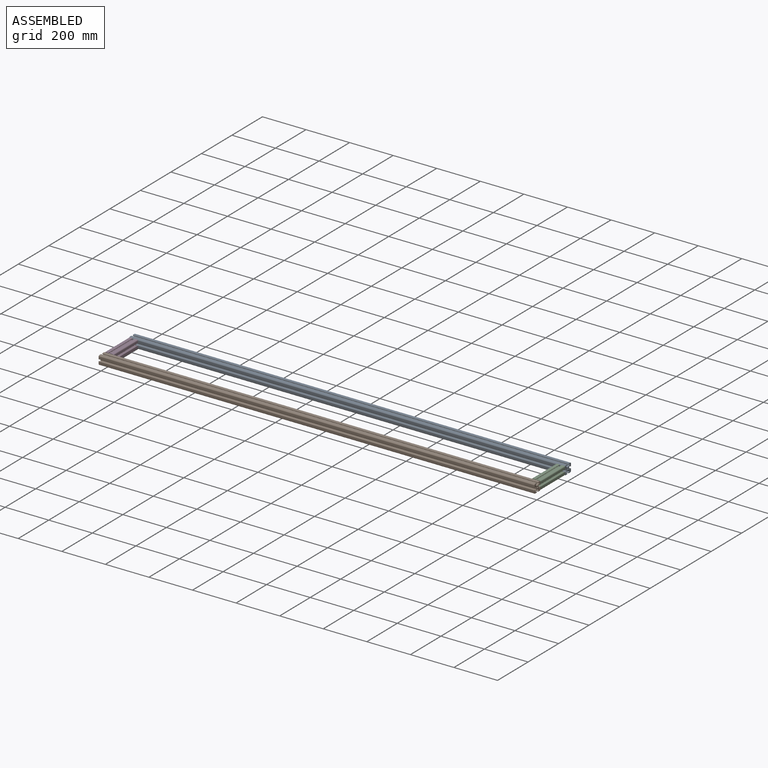
[diagram: assembled view]
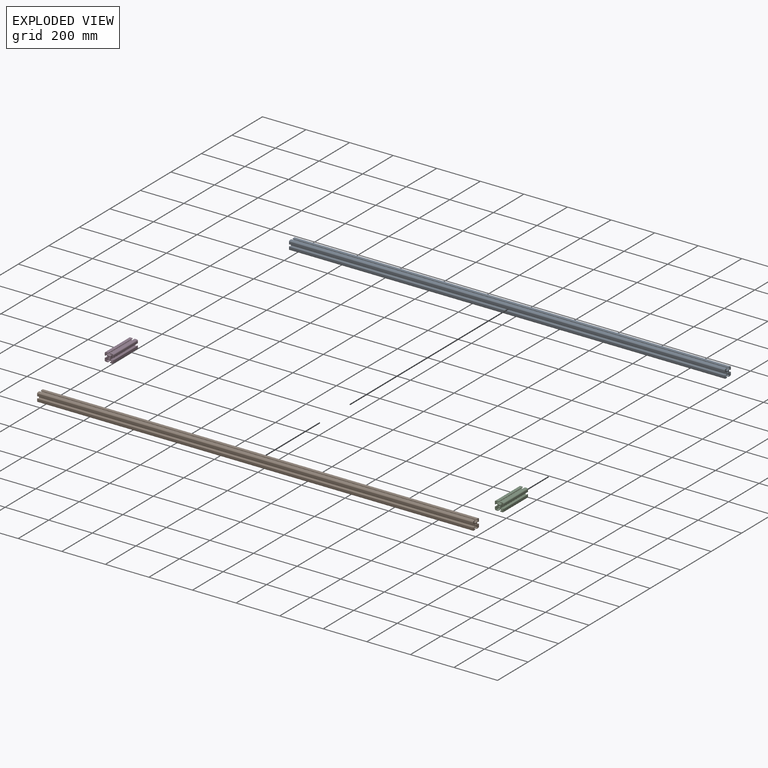
[diagram: exploded view]
GUIDED TOUR — MATED ASSEMBLY (Onshape document a8d9fd13c2979583b08a12fe, AutoMate assembly a8d9fd13c2979583b08a12fe_13805c532ee2814250194489_da5bbe4ac41f4ea30e49d198_default)

This assembly has 4 components, labeled P0..P3 below (a component is one placed occurrence of a part; the same part can appear more than once), held together by 3 mates. A mate is a constraint between two components; its type names the relative motion it leaves free:
  FASTENED — locks the two components together rigidly (no relative motion).
Axis/direction vectors are unit vectors and 'through' points are millimeter coordinates, both in the assembly's world frame.

MATES
  1. FASTENED "Fastened 2": P1 <-> P3, direction (0.000, 1.000, 0.000) through (0.00, -175.94, -15.18) mm
  2. FASTENED "Fastened 3": P2 <-> P0, direction (0.000, 1.000, 0.000) through (2000.00, -15.94, -15.18) mm
  3. FASTENED "Fastened 1": P3 <-> P0, direction (0.000, 1.000, 0.000) through (0.00, -15.94, 5.88) mm

ASSEMBLY ORDER
  1. P3 — the base component [order verified]
  2. P2 [order verified]
  3. P1 [order verified]
  4. P0 [order verified]
Order-tag legend:
  [order verified] — this step's position reverses a verified removal order: the component was checked to insert without passing through the ones already placed.

Of the 4 components, 4 carry the full construction recipe — the FeatureScript program that regenerates the part's solid from scratch; the rest are supplied as boundary geometry only.
Each toured component is shown spotlighted twice — in the assembled view, then in the exploded view, where a leader line traces a displaced component back to its assembled socket (saturated green if recipe-attached, orange if geometry-only; every other component desaturated gray) — followed by its recipe or geometry summary and the mates that hold it.
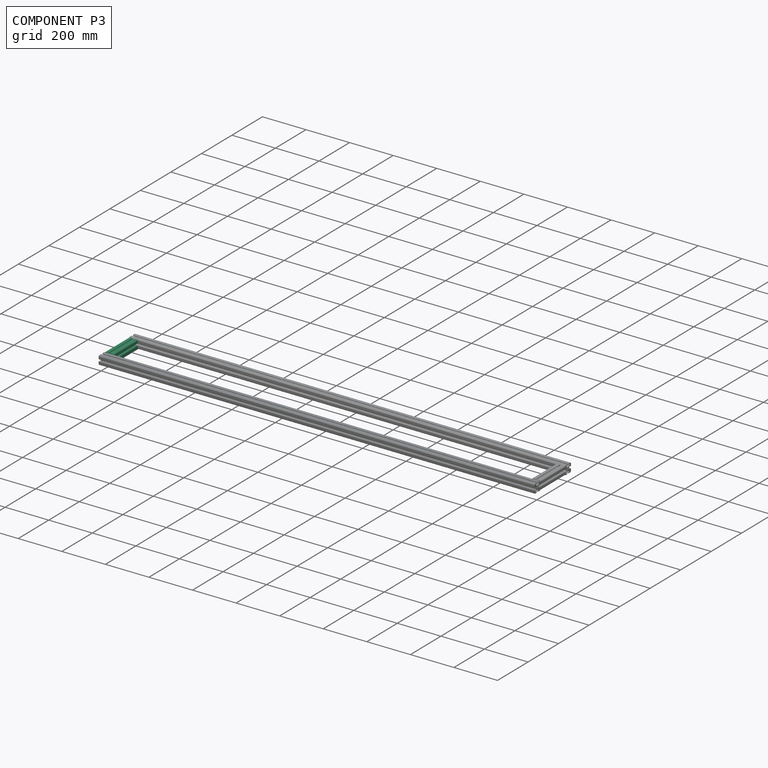
[diagram: component P3 — assembled]
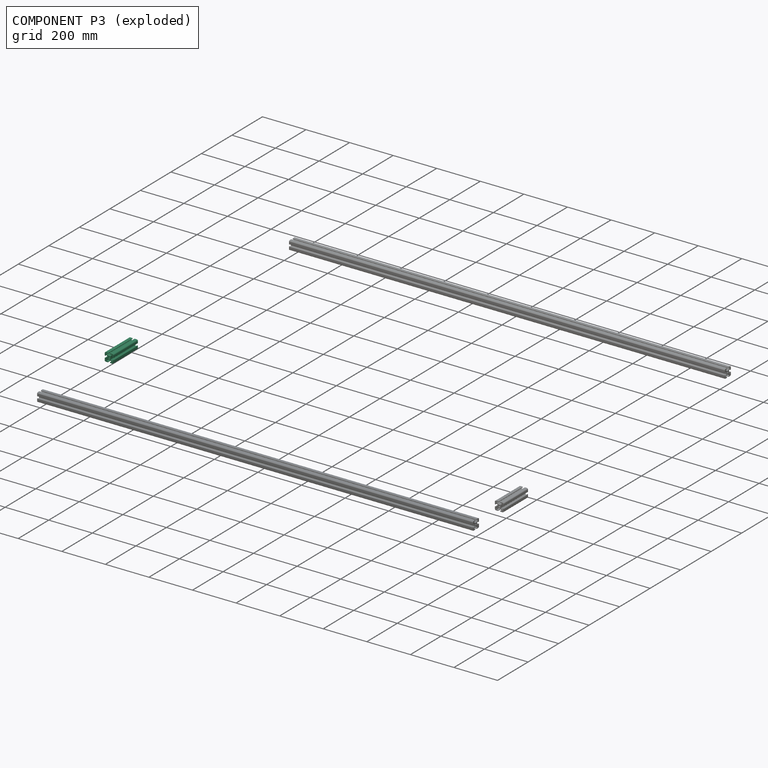
[diagram: component P3 — exploded]
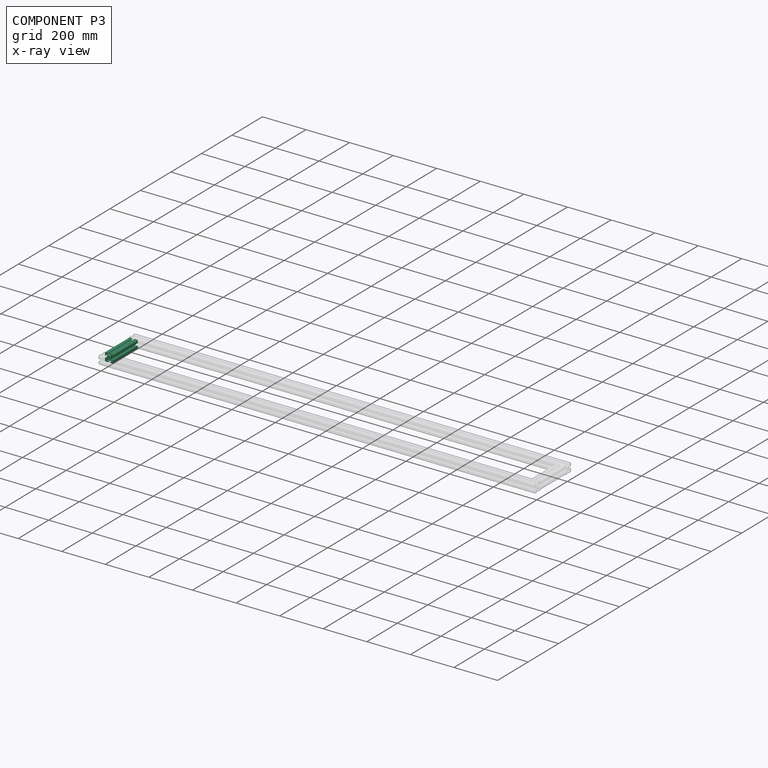
[diagram: component P3 — x-ray view]
COMPONENT P3 — same part as P2 (CADFS 00881979); its construction recipe is shown at P2.
Held by: FASTENED mate "Fastened 2" to P1; FASTENED mate "Fastened 1" to P0.
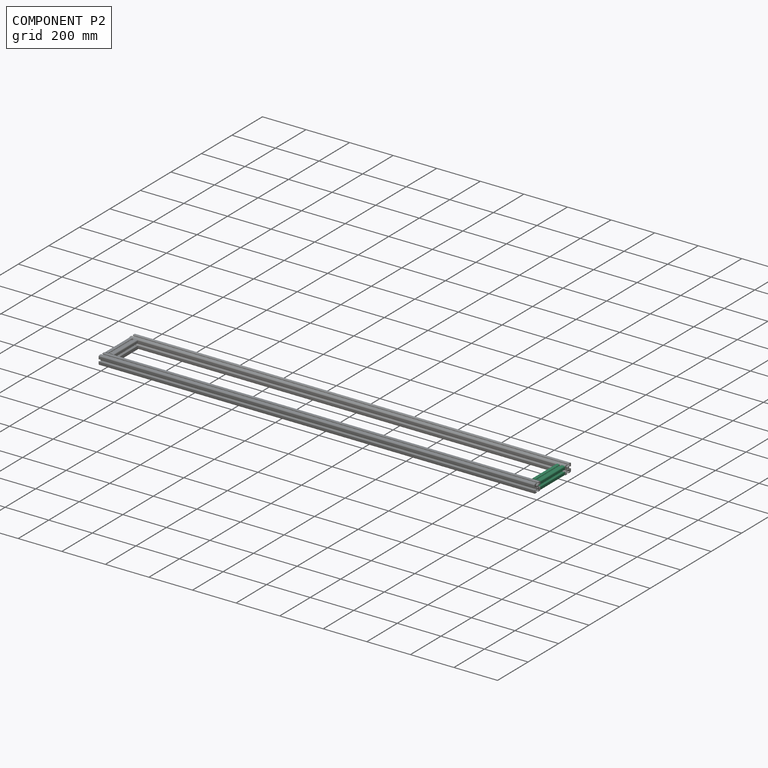
[diagram: component P2 — assembled]
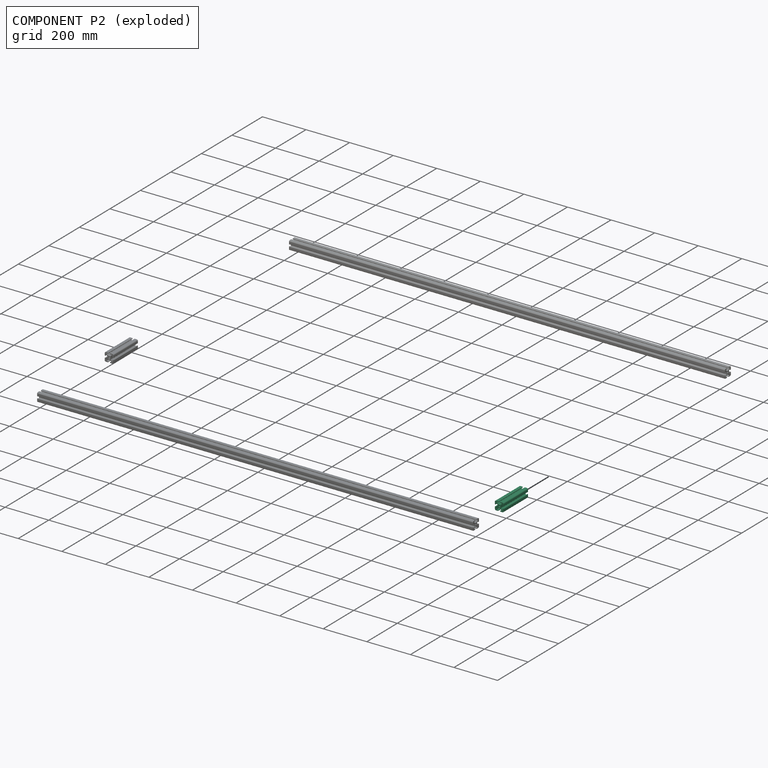
[diagram: component P2 — exploded]
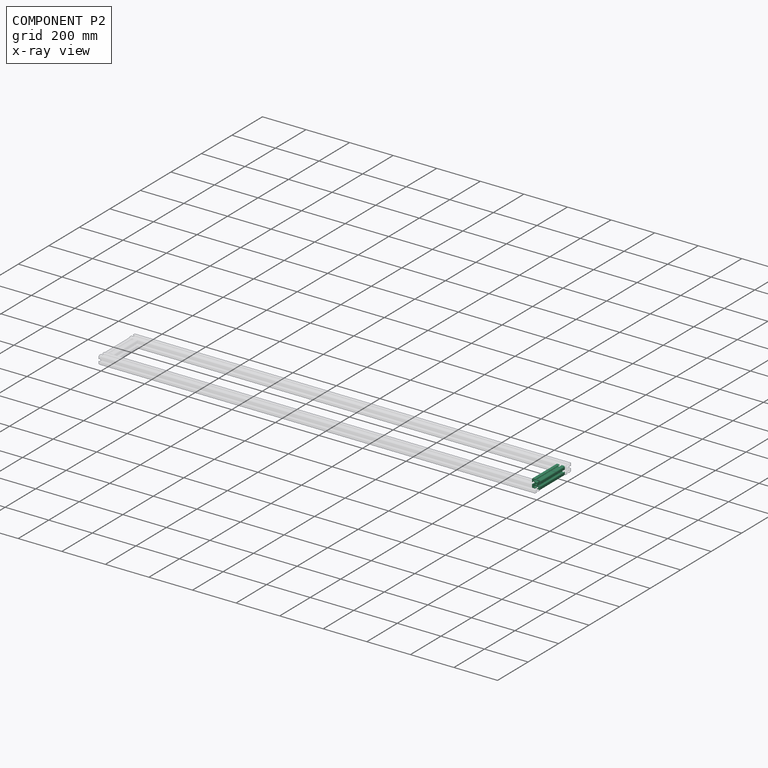
[diagram: component P2 — x-ray view]
COMPONENT P2 — recipe-attached (CADFS 00881979, mesh-verified: the recipe's output STEP matches this component's geometry to below the mesh-comparison resolution (tessellation chordal tolerance ~0.255 mm)).
Held by: FASTENED mate "Fastened 3" to P0.
Construction recipe (FeatureScript — the CAD program that rebuilds this solid; sketch coordinates are in the units given by the * unit suffixes, e.g. mm):

FeatureScript 1511;
import(path : "onshape/std/geometry.fs", version : "1511.0");
import(path : "onshape/std/common.fs", version : "1511.0");
const mm = millimeter;
const VERTEX = EntityType.VERTEX;
const EDGE = EntityType.EDGE;
const FACE = EntityType.FACE;
const BODY = EntityType.BODY;
function v(x, y){return vector(x, y);}
function OD(order){return orderDisambiguation(order);}
function OSD(set){return originalSetDisambiguation(set);}
function TD(topology){return topologyDisambiguation(topology);}
function TDD(query){return trueDependencyDisambiguation(query);}
function sQuery(a, b, c) {return sketchEntityQuery(a, b, c);}

annotation { "Feature Type Name" : "Feature", "Feature Type Description" : "" }
export const myFeature = defineFeature(function(context is Context, id is Id, definition is map)
    precondition{}
    {
        {
            var Q0;
            Q0=qCreatedBy(makeId("Right.planeOp"),FACE);
            var sketch = newSketch(context, id + "F0", { "sketchPlane" : qUnion([Q0])});
            skLineSegment(sketch, "E0", {"start": v(-15.94, 15.35) * mm, "end": v(0, 15.35) * mm});
            skLineSegment(sketch, "E1", {"start": v(0, 15.35) * mm, "end": v(8.12, 15.35) * mm, "construction": true});
            skLineSegment(sketch, "E2", {"start": v(8.12, 15.35) * mm, "end": v(24.06, 15.35) * mm});
            skLineSegment(sketch, "E3.bottom", {"start": v(-3.62, 3.04) * mm, "end": v(11.75, 3.04) * mm});
            skLineSegment(sketch, "E3.top", {"start": v(-3.62, -12.33) * mm, "end": v(11.75, -12.33) * mm});
            skLineSegment(sketch, "E3.left", {"start": v(-3.62, 3.04) * mm, "end": v(-3.62, -12.33) * mm});
            skLineSegment(sketch, "E3.right", {"start": v(11.75, 3.04) * mm, "end": v(11.75, -12.33) * mm});
            skLineSegment(sketch, "E4", {"start": v(11.74, 3.04) * mm, "end": v(24.06, 15.35) * mm, "construction": true});
            skLineSegment(sketch, "E5", {"start": v(-3.62, 3.04) * mm, "end": v(-15.94, 15.35) * mm});
            skLineSegment(sketch, "E6", {"start": v(-3.62, -12.33) * mm, "end": v(-15.94, -24.65) * mm, "construction": true});
            skLineSegment(sketch, "E7", {"start": v(11.74, -12.33) * mm, "end": v(24.06, -24.65) * mm});
            skLineSegment(sketch, "E8", {"start": v(16.5, 7.78) * mm, "end": v(14.97, 9.31) * mm, "construction": true});
            skLineSegment(sketch, "E9", {"start": v(16.5, 7.78) * mm, "end": v(18.02, 6.26) * mm, "construction": true});
            skLineSegment(sketch, "E10", {"start": v(14.97, 9.31) * mm, "end": v(21, 15.35) * mm});
            skLineSegment(sketch, "E11", {"start": v(18.02, 6.26) * mm, "end": v(24.06, 12.3) * mm});
            skLineSegment(sketch, "E12", {"start": v(14.97, 9.31) * mm, "end": v(-15.94, -21.6) * mm});
            skLineSegment(sketch, "E13", {"start": v(18.02, 6.26) * mm, "end": v(-12.89, -24.65) * mm});
            skLineSegment(sketch, "E14", {"start": v(0, 15.35) * mm, "end": v(0, 11.03) * mm});
            skLineSegment(sketch, "E15", {"start": v(8.12, 15.35) * mm, "end": v(8.12, 11.03) * mm});
            skLineSegment(sketch, "E16", {"start": v(8.12, 11.03) * mm, "end": v(16.69, 11.03) * mm});
            skLineSegment(sketch, "E17", {"start": v(0, 11.03) * mm, "end": v(-11.62, 11.03) * mm});
            skLineSegment(sketch, "E18", {"start": v(-3.62, 3.04) * mm, "end": v(11.75, -12.33) * mm});
            skLineSegment(sketch, "E19", {"start": v(11.74, 3.04) * mm, "end": v(-3.62, -12.33) * mm, "construction": true});
            skCircle(sketch, "E20", {"center": v(4.06, -4.65) * mm, "radius": 3.4 * mm});
            skLineSegment(sketch, "E21", {"start": v(24.06, -0.59) * mm, "end": v(24.06, -8.7) * mm, "construction": true});
            skLineSegment(sketch, "E22", {"start": v(24.06, -0.59) * mm, "end": v(24.06, 15.35) * mm});
            skLineSegment(sketch, "E23", {"start": v(24.06, -24.65) * mm, "end": v(24.06, -8.7) * mm});
            skLineSegment(sketch, "E24", {"start": v(24.06, -0.59) * mm, "end": v(19.74, -0.59) * mm});
            skLineSegment(sketch, "E25", {"start": v(24.06, -8.7) * mm, "end": v(19.74, -8.7) * mm});
            skLineSegment(sketch, "E26", {"start": v(19.74, -0.59) * mm, "end": v(19.74, 7.98) * mm});
            skLineSegment(sketch, "E27", {"start": v(19.74, 7.98) * mm, "end": v(16.69, 11.03) * mm});
            skLineSegment(sketch, "E28", {"start": v(-7.27, 6.68) * mm, "end": v(-8.8, 5.15) * mm});
            skLineSegment(sketch, "E29", {"start": v(-7.27, 6.68) * mm, "end": v(-5.74, 8.2) * mm});
            skLineSegment(sketch, "E30", {"start": v(-5.74, 8.2) * mm, "end": v(-12.89, 15.35) * mm});
            skLineSegment(sketch, "E31", {"start": v(-5.74, 8.2) * mm, "end": v(24.06, -21.6) * mm});
            skLineSegment(sketch, "E32", {"start": v(19.74, -8.7) * mm, "end": v(19.74, -17.27) * mm});
            skLineSegment(sketch, "E33", {"start": v(-15.94, 15.35) * mm, "end": v(-15.94, -0.59) * mm});
            skLineSegment(sketch, "E34", {"start": v(-15.94, -0.59) * mm, "end": v(-15.94, -8.7) * mm, "construction": true});
            skLineSegment(sketch, "E35", {"start": v(-15.94, -24.65) * mm, "end": v(0, -24.65) * mm});
            skLineSegment(sketch, "E36", {"start": v(0, -24.65) * mm, "end": v(8.12, -24.65) * mm, "construction": true});
            skLineSegment(sketch, "E37", {"start": v(-15.94, -8.7) * mm, "end": v(-15.94, -24.65) * mm});
            skLineSegment(sketch, "E38", {"start": v(8.12, -24.65) * mm, "end": v(24.06, -24.65) * mm});
            skLineSegment(sketch, "E39", {"start": v(-8.8, 5.15) * mm, "end": v(-15.94, 12.3) * mm});
            skLineSegment(sketch, "E40", {"start": v(-8.8, 5.15) * mm, "end": v(21, -24.65) * mm});
            skLineSegment(sketch, "E41", {"start": v(-15.94, -0.59) * mm, "end": v(-11.62, -0.59) * mm});
            skLineSegment(sketch, "E42", {"start": v(-15.94, -8.7) * mm, "end": v(-11.62, -8.7) * mm});
            skLineSegment(sketch, "E43", {"start": v(0, -24.65) * mm, "end": v(0, -20.33) * mm});
            skLineSegment(sketch, "E44", {"start": v(8.12, -24.65) * mm, "end": v(8.12, -20.33) * mm});
            skLineSegment(sketch, "E45", {"start": v(-11.62, -0.59) * mm, "end": v(-11.62, 7.98) * mm});
            skLineSegment(sketch, "E46", {"start": v(-11.62, -8.7) * mm, "end": v(-11.62, -17.27) * mm});
            skLineSegment(sketch, "E47", {"start": v(0, -20.33) * mm, "end": v(-8.57, -20.33) * mm});
            skLineSegment(sketch, "E48", {"start": v(8.12, -20.33) * mm, "end": v(16.69, -20.33) * mm});
            skSolve(sketch);
        }
        {
            var Q0;
            {var subQ0=sQuery(id+"F0.wireOp",EDGE,"E41");Q0=makeQuery(id+"F0.imprint","IMPRINT",FACE,{"disambiguationData":[TD([[makeQuery(id+"F0.imprint","IMPRINT",EDGE,{"derivedFrom":subQ0}),1.0]])]});}
            var Q1;
            {var subQ0=sQuery(id+"F0.wireOp",EDGE,"E28");Q1=makeQuery(id+"F0.imprint","IMPRINT",FACE,{"disambiguationData":[TD([[makeQuery(id+"F0.imprint","IMPRINT",EDGE,{"derivedFrom":subQ0}),-1.0]])]});}
            var Q2;
            {var subQ3=sQuery(id+"F0.wireOp",EDGE,"E29");Q2=makeQuery(id+"F0.imprint","IMPRINT",FACE,{"disambiguationData":[TD([[makeQuery(id+"F0.imprint","IMPRINT",EDGE,{"derivedFrom":subQ3}),1.0]])]});}
            var Q3;
            {var subQ0=sQuery(id+"F0.wireOp",EDGE,"E14");Q3=makeQuery(id+"F0.imprint","IMPRINT",FACE,{"disambiguationData":[TD([[makeQuery(id+"F0.imprint","IMPRINT",EDGE,{"derivedFrom":subQ0}),-1.0]])]});}
            var Q4;
            {var subQ0=sQuery(id+"F0.wireOp",EDGE,"E5");var subQ5=sQuery(id+"F0.wireOp",EDGE,"E17");var subQ6=makeQuery(id+"F0.imprint","INTERSECT",VERTEX,{"derivedFrom":[subQ0,subQ5]});Q4=makeQuery(id+"F0.imprint","IMPRINT",FACE,{"disambiguationData":[TD([[makeQuery(id+"F0.imprint","IMPRINT",EDGE,{"disambiguationData":[TD([[subQ6,1.0]])],"derivedFrom":subQ5}),-1.0]])]});}
            var Q5;
            {var subQ4=sQuery(id+"F0.wireOp",EDGE,"E42");Q5=makeQuery(id+"F0.imprint","IMPRINT",FACE,{"disambiguationData":[TD([[makeQuery(id+"F0.imprint","IMPRINT",EDGE,{"derivedFrom":subQ4}),-1.0]])]});}
            var Q6;
            {var subQ2=sQuery(id+"F0.wireOp",EDGE,"E3.left");var subQ6=sQuery(id+"F0.wireOp",EDGE,"E3.top");var subQ7=makeQuery(id+"F0.imprint","INTERSECT",VERTEX,{"derivedFrom":[subQ6,subQ2]});Q6=makeQuery(id+"F0.imprint","IMPRINT",FACE,{"disambiguationData":[TD([[makeQuery(id+"F0.imprint","IMPRINT",EDGE,{"disambiguationData":[TD([[subQ7,-1.0]])],"derivedFrom":subQ6}),-1.0]])]});}
            var Q7;
            {var subQ4=sQuery(id+"F0.wireOp",EDGE,"E43");Q7=makeQuery(id+"F0.imprint","IMPRINT",FACE,{"disambiguationData":[TD([[makeQuery(id+"F0.imprint","IMPRINT",EDGE,{"derivedFrom":subQ4}),1.0]])]});}
            var Q8;
            {var subQ3=sQuery(id+"F0.wireOp",EDGE,"E27");Q8=makeQuery(id+"F0.imprint","IMPRINT",FACE,{"disambiguationData":[TD([[makeQuery(id+"F0.imprint","IMPRINT",EDGE,{"derivedFrom":subQ3}),1.0]])]});}
            var Q9;
            {var subQ3=sQuery(id+"F0.wireOp",EDGE,"E27");Q9=makeQuery(id+"F0.imprint","IMPRINT",FACE,{"disambiguationData":[TD([[makeQuery(id+"F0.imprint","IMPRINT",EDGE,{"derivedFrom":subQ3}),-1.0]])]});}
            var Q10;
            {var subQ4=sQuery(id+"F0.wireOp",EDGE,"E24");Q10=makeQuery(id+"F0.imprint","IMPRINT",FACE,{"disambiguationData":[TD([[makeQuery(id+"F0.imprint","IMPRINT",EDGE,{"derivedFrom":subQ4}),-1.0]])]});}
            var Q11;
            {var subQ0=sQuery(id+"F0.wireOp",EDGE,"E15");Q11=makeQuery(id+"F0.imprint","IMPRINT",FACE,{"disambiguationData":[TD([[makeQuery(id+"F0.imprint","IMPRINT",EDGE,{"derivedFrom":subQ0}),1.0]])]});}
            var Q12;
            {var subQ0=sQuery(id+"F0.wireOp",EDGE,"E13");var subQ1=sQuery(id+"F0.wireOp",EDGE,"E3.right");var subQ2=makeQuery(id+"F0.imprint","INTERSECT",VERTEX,{"derivedFrom":[subQ1,subQ0]});Q12=makeQuery(id+"F0.imprint","IMPRINT",FACE,{"disambiguationData":[TD([[makeQuery(id+"F0.imprint","IMPRINT",EDGE,{"disambiguationData":[TD([[subQ2,-1.0]])],"derivedFrom":subQ1}),-1.0]])]});}
            var Q13;
            {var subQ0=sQuery(id+"F0.wireOp",EDGE,"E13");var subQ1=sQuery(id+"F0.wireOp",EDGE,"E3.top");var subQ2=makeQuery(id+"F0.imprint","INTERSECT",VERTEX,{"derivedFrom":[subQ1,subQ0]});Q13=makeQuery(id+"F0.imprint","IMPRINT",FACE,{"disambiguationData":[TD([[makeQuery(id+"F0.imprint","IMPRINT",EDGE,{"disambiguationData":[TD([[subQ2,-1.0]])],"derivedFrom":subQ1}),1.0]])]});}
            var Q14;
            {var subQ0=sQuery(id+"F0.wireOp",EDGE,"E40");var subQ1=sQuery(id+"F0.wireOp",EDGE,"E3.left");var subQ2=makeQuery(id+"F0.imprint","INTERSECT",VERTEX,{"derivedFrom":[subQ1,subQ0]});Q14=makeQuery(id+"F0.imprint","IMPRINT",FACE,{"disambiguationData":[TD([[makeQuery(id+"F0.imprint","IMPRINT",EDGE,{"disambiguationData":[TD([[subQ2,-1.0]])],"derivedFrom":subQ1}),1.0]])]});}
            var Q15;
            {var subQ0=sQuery(id+"F0.wireOp",EDGE,"E31");var subQ1=sQuery(id+"F0.wireOp",EDGE,"E3.bottom");var subQ2=makeQuery(id+"F0.imprint","INTERSECT",VERTEX,{"derivedFrom":[subQ1,subQ0]});Q15=makeQuery(id+"F0.imprint","IMPRINT",FACE,{"disambiguationData":[TD([[makeQuery(id+"F0.imprint","IMPRINT",EDGE,{"disambiguationData":[TD([[subQ2,-1.0]])],"derivedFrom":subQ1}),-1.0]])]});}
            var Q16;
            {var subQ5=sQuery(id+"F0.wireOp",EDGE,"E29");Q16=makeQuery(id+"F0.imprint","IMPRINT",FACE,{"disambiguationData":[TD([[makeQuery(id+"F0.imprint","IMPRINT",EDGE,{"derivedFrom":subQ5}),-1.0]])]});}
            var Q17;
            {var subQ5=sQuery(id+"F0.wireOp",EDGE,"E28");Q17=makeQuery(id+"F0.imprint","IMPRINT",FACE,{"disambiguationData":[TD([[makeQuery(id+"F0.imprint","IMPRINT",EDGE,{"derivedFrom":subQ5}),1.0]])]});}
            var Q18;
            {var subQ1=sQuery(id+"F0.wireOp",EDGE,"E7");Q18=makeQuery(id+"F0.imprint","IMPRINT",FACE,{"disambiguationData":[TD([[makeQuery(id+"F0.imprint","IMPRINT",EDGE,{"derivedFrom":subQ1}),-1.0]])]});}
            var Q19;
            {var subQ1=sQuery(id+"F0.wireOp",EDGE,"E7");Q19=makeQuery(id+"F0.imprint","IMPRINT",FACE,{"disambiguationData":[TD([[makeQuery(id+"F0.imprint","IMPRINT",EDGE,{"derivedFrom":subQ1}),1.0]])]});}
            var Q20;
            {var subQ0=sQuery(id+"F0.wireOp",EDGE,"E25");Q20=makeQuery(id+"F0.imprint","IMPRINT",FACE,{"disambiguationData":[TD([[makeQuery(id+"F0.imprint","IMPRINT",EDGE,{"derivedFrom":subQ0}),1.0]])]});}
            var Q21;
            {var subQ0=sQuery(id+"F0.wireOp",EDGE,"E44");Q21=makeQuery(id+"F0.imprint","IMPRINT",FACE,{"disambiguationData":[TD([[makeQuery(id+"F0.imprint","IMPRINT",EDGE,{"derivedFrom":subQ0}),-1.0]])]});}
            var Q22;
            {var subQ1=sQuery(id+"F0.wireOp",EDGE,"E3.right");var subQ6=sQuery(id+"F0.wireOp",EDGE,"E3.bottom");var subQ9=makeQuery(id+"F0.imprint","INTERSECT",VERTEX,{"derivedFrom":[subQ6,subQ1]});Q22=makeQuery(id+"F0.imprint","IMPRINT",FACE,{"disambiguationData":[TD([[makeQuery(id+"F0.imprint","IMPRINT",EDGE,{"disambiguationData":[TD([[subQ9,1.0]])],"derivedFrom":subQ6}),-1.0]])]});}
            var Q23;
            {var subQ0=sQuery(id+"F0.wireOp",EDGE,"E18");var subQ5=sQuery(id+"F0.wireOp",EDGE,"E20");var subQ6=makeQuery(id+"F0.imprint","INTERSECT",VERTEX,{"disambiguationData":[OD(0.0)],"derivedFrom":[subQ0,subQ5]});Q23=makeQuery(id+"F0.imprint","IMPRINT",FACE,{"disambiguationData":[TD([[makeQuery(id+"F0.imprint","IMPRINT",EDGE,{"disambiguationData":[TD([[subQ6,-1.0]])],"derivedFrom":subQ5}),-1.0]])]});}
            var Q24;
            {var subQ1=sQuery(id+"F0.wireOp",EDGE,"E3.top");var subQ6=sQuery(id+"F0.wireOp",EDGE,"E3.left");var subQ9=makeQuery(id+"F0.imprint","INTERSECT",VERTEX,{"derivedFrom":[subQ1,subQ6]});Q24=makeQuery(id+"F0.imprint","IMPRINT",FACE,{"disambiguationData":[TD([[makeQuery(id+"F0.imprint","IMPRINT",EDGE,{"disambiguationData":[TD([[subQ9,-1.0]])],"derivedFrom":subQ1}),1.0]])]});}
            var Q25;
            {var subQ0=sQuery(id+"F0.wireOp",EDGE,"E18");var subQ5=sQuery(id+"F0.wireOp",EDGE,"E20");var subQ6=makeQuery(id+"F0.imprint","INTERSECT",VERTEX,{"disambiguationData":[OD(1.0)],"derivedFrom":[subQ0,subQ5]});Q25=makeQuery(id+"F0.imprint","IMPRINT",FACE,{"disambiguationData":[TD([[makeQuery(id+"F0.imprint","IMPRINT",EDGE,{"disambiguationData":[TD([[subQ6,1.0]])],"derivedFrom":subQ5}),-1.0]])]});}
            var Q26;
            {var subQ0=sQuery(id+"F0.wireOp",EDGE,"E18");var subQ5=sQuery(id+"F0.wireOp",EDGE,"E20");var subQ6=makeQuery(id+"F0.imprint","INTERSECT",VERTEX,{"disambiguationData":[OD(1.0)],"derivedFrom":[subQ0,subQ5]});Q26=makeQuery(id+"F0.imprint","IMPRINT",FACE,{"disambiguationData":[TD([[makeQuery(id+"F0.imprint","IMPRINT",EDGE,{"disambiguationData":[TD([[subQ6,-1.0]])],"derivedFrom":subQ5}),-1.0]])]});}
            var Q27;
            {var subQ0=sQuery(id+"F0.wireOp",EDGE,"E18");var subQ5=sQuery(id+"F0.wireOp",EDGE,"E20");var subQ6=makeQuery(id+"F0.imprint","INTERSECT",VERTEX,{"disambiguationData":[OD(0.0)],"derivedFrom":[subQ0,subQ5]});Q27=makeQuery(id+"F0.imprint","IMPRINT",FACE,{"disambiguationData":[TD([[makeQuery(id+"F0.imprint","IMPRINT",EDGE,{"disambiguationData":[TD([[subQ6,1.0]])],"derivedFrom":subQ5}),-1.0]])]});}
            extrude(context, id + "F1", {"entities" : qUnion([Q0, Q1, Q2, Q3, Q4, Q5, Q6, Q7, Q8, Q9, Q10, Q11, Q12, Q13, Q14, Q15, Q16, Q17, Q18, Q19, Q20, Q21, Q22, Q23, Q24, Q25, Q26, Q27]), "depth" : 160 * mm});
        }
        {
            var Q0;
            Q0=makeQuery(id+"F1.opExtrude","SWEPT_EDGE",EDGE,{"disambiguationData":[OSD([sQuery(id+"F0.wireOp",EDGE,"E14"),sQuery(id+"F0.wireOp",EDGE,"E17")])]});
            var Q1;
            Q1=makeQuery(id+"F1.opExtrude","SWEPT_EDGE",EDGE,{"disambiguationData":[OSD([sQuery(id+"F0.wireOp",EDGE,"E41"),sQuery(id+"F0.wireOp",EDGE,"E45")])]});
            var Q2;
            Q2=makeQuery(id+"F1.opExtrude","SWEPT_EDGE",EDGE,{"disambiguationData":[OSD([sQuery(id+"F0.wireOp",EDGE,"E33"),sQuery(id+"F0.wireOp",EDGE,"E41")])]});
            var Q3;
            Q3=makeQuery(id+"F1.opExtrude","SWEPT_EDGE",EDGE,{"disambiguationData":[OSD([sQuery(id+"F0.wireOp",EDGE,"E0"),sQuery(id+"F0.wireOp",EDGE,"E14")])]});
            var Q4;
            Q4=makeQuery(id+"F1.opExtrude","SWEPT_EDGE",EDGE,{"disambiguationData":[OSD([sQuery(id+"F0.wireOp",EDGE,"E15"),sQuery(id+"F0.wireOp",EDGE,"E16")])]});
            var Q5;
            Q5=makeQuery(id+"F1.opExtrude","SWEPT_EDGE",EDGE,{"disambiguationData":[OSD([sQuery(id+"F0.wireOp",EDGE,"E24"),sQuery(id+"F0.wireOp",EDGE,"E26")])]});
            var Q6;
            Q6=makeQuery(id+"F1.opExtrude","SWEPT_EDGE",EDGE,{"disambiguationData":[OSD([sQuery(id+"F0.wireOp",EDGE,"E22"),sQuery(id+"F0.wireOp",EDGE,"E24")])]});
            var Q7;
            Q7=makeQuery(id+"F1.opExtrude","SWEPT_EDGE",EDGE,{"disambiguationData":[OSD([sQuery(id+"F0.wireOp",EDGE,"E38"),sQuery(id+"F0.wireOp",EDGE,"E44")])]});
            var Q8;
            Q8=makeQuery(id+"F1.opExtrude","SWEPT_EDGE",EDGE,{"disambiguationData":[OSD([sQuery(id+"F0.wireOp",EDGE,"E2"),sQuery(id+"F0.wireOp",EDGE,"E15")])]});
            var Q9;
            Q9=makeQuery(id+"F1.opExtrude","SWEPT_EDGE",EDGE,{"disambiguationData":[OSD([sQuery(id+"F0.wireOp",EDGE,"E37"),sQuery(id+"F0.wireOp",EDGE,"E42")])]});
            var Q10;
            Q10=makeQuery(id+"F1.opExtrude","SWEPT_EDGE",EDGE,{"disambiguationData":[OSD([sQuery(id+"F0.wireOp",EDGE,"E42"),sQuery(id+"F0.wireOp",EDGE,"E46")])]});
            var Q11;
            Q11=makeQuery(id+"F1.opExtrude","SWEPT_EDGE",EDGE,{"disambiguationData":[OSD([sQuery(id+"F0.wireOp",EDGE,"E35"),sQuery(id+"F0.wireOp",EDGE,"E43")])]});
            var Q12;
            Q12=makeQuery(id+"F1.opExtrude","SWEPT_EDGE",EDGE,{"disambiguationData":[OSD([sQuery(id+"F0.wireOp",EDGE,"E43"),sQuery(id+"F0.wireOp",EDGE,"E47")])]});
            var Q13;
            Q13=makeQuery(id+"F1.opExtrude","SWEPT_EDGE",EDGE,{"disambiguationData":[OSD([sQuery(id+"F0.wireOp",EDGE,"E44"),sQuery(id+"F0.wireOp",EDGE,"E48")])]});
            var Q14;
            Q14=makeQuery(id+"F1.opExtrude","SWEPT_EDGE",EDGE,{"disambiguationData":[OSD([sQuery(id+"F0.wireOp",EDGE,"E25"),sQuery(id+"F0.wireOp",EDGE,"E32")])]});
            var Q15;
            Q15=makeQuery(id+"F1.opExtrude","SWEPT_EDGE",EDGE,{"disambiguationData":[OSD([sQuery(id+"F0.wireOp",EDGE,"E23"),sQuery(id+"F0.wireOp",EDGE,"E25")])]});
            fillet(context, id + "F2", {"entities" : qUnion([Q0, Q1, Q2, Q3, Q4, Q5, Q6, Q7, Q8, Q9, Q10, Q11, Q12, Q13, Q14, Q15]), "radius" : 2 * mm, "tangentPropagation" : true, "allowEdgeOverflow" : false});
        }
        {
            var Q0;
            Q0=makeQuery(id+"F1.opExtrude","SWEPT_EDGE",EDGE,{"disambiguationData":[OSD([sQuery(id+"F0.wireOp",EDGE,"E0"),sQuery(id+"F0.wireOp",EDGE,"E5"),sQuery(id+"F0.wireOp",EDGE,"E33")])]});
            var Q1;
            Q1=makeQuery(id+"F1.opExtrude","SWEPT_EDGE",EDGE,{"disambiguationData":[OSD([sQuery(id+"F0.wireOp",EDGE,"E2"),sQuery(id+"F0.wireOp",EDGE,"E22")])]});
            var Q2;
            Q2=makeQuery(id+"F1.opExtrude","SWEPT_EDGE",EDGE,{"disambiguationData":[OSD([sQuery(id+"F0.wireOp",EDGE,"E7"),sQuery(id+"F0.wireOp",EDGE,"E23"),sQuery(id+"F0.wireOp",EDGE,"E38")])]});
            var Q3;
            Q3=makeQuery(id+"F1.opExtrude","SWEPT_EDGE",EDGE,{"disambiguationData":[OSD([sQuery(id+"F0.wireOp",EDGE,"E35"),sQuery(id+"F0.wireOp",EDGE,"E37")])]});
            fillet(context, id + "F3", {"entities" : qUnion([Q0, Q1, Q2, Q3]), "radius" : 5 * mm, "tangentPropagation" : true, "allowEdgeOverflow" : false});
        }
    });
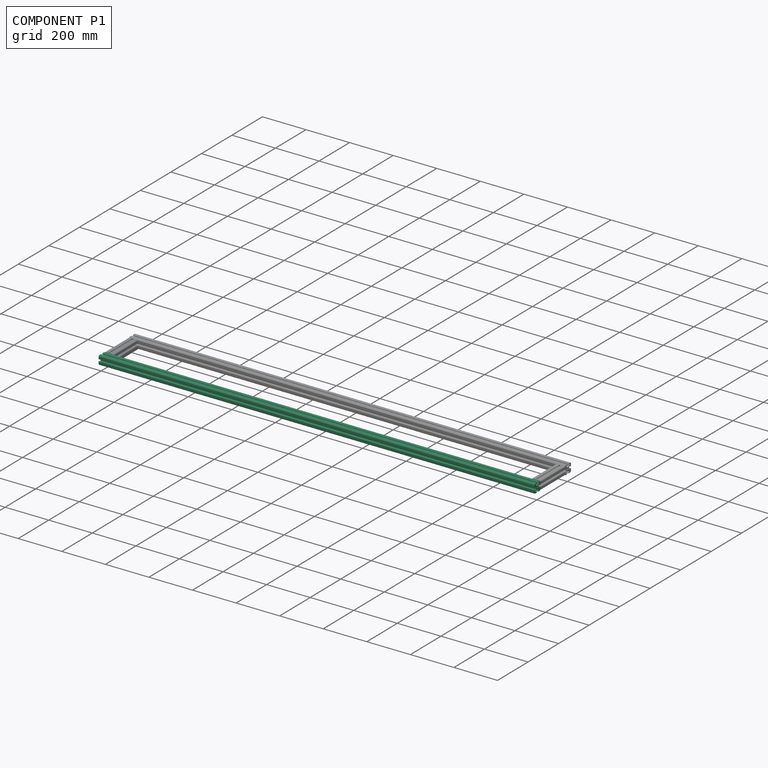
[diagram: component P1 — assembled]
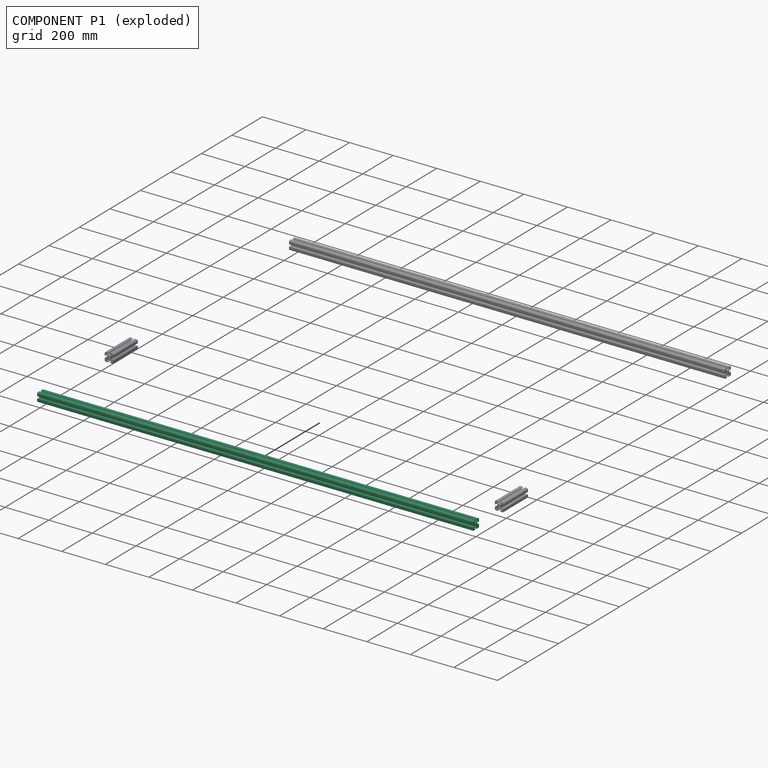
[diagram: component P1 — exploded]
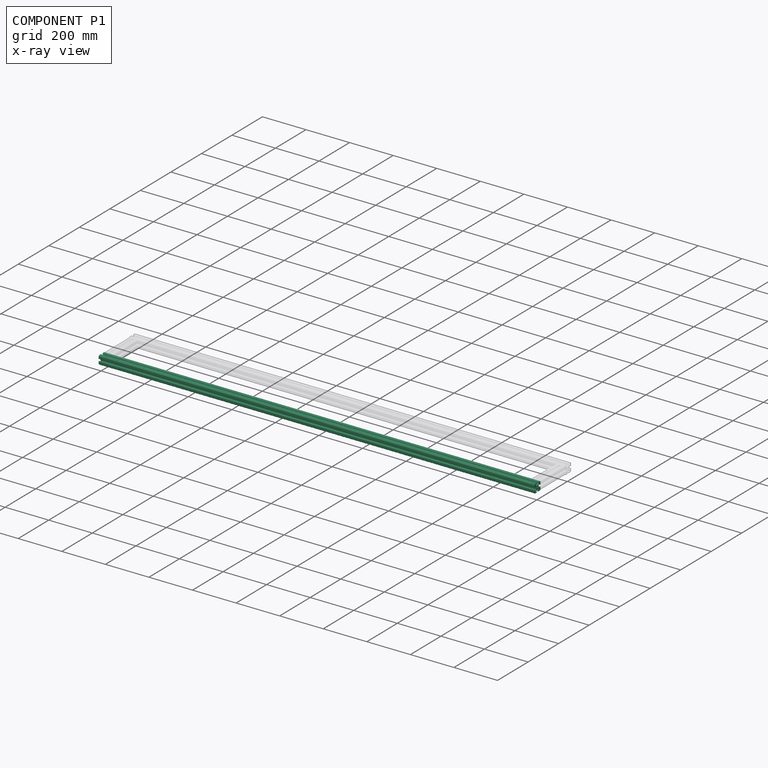
[diagram: component P1 — x-ray view]
COMPONENT P1 — same part as P0 (CADFS 00881980); its construction recipe is shown at P0.
Held by: FASTENED mate "Fastened 2" to P3.
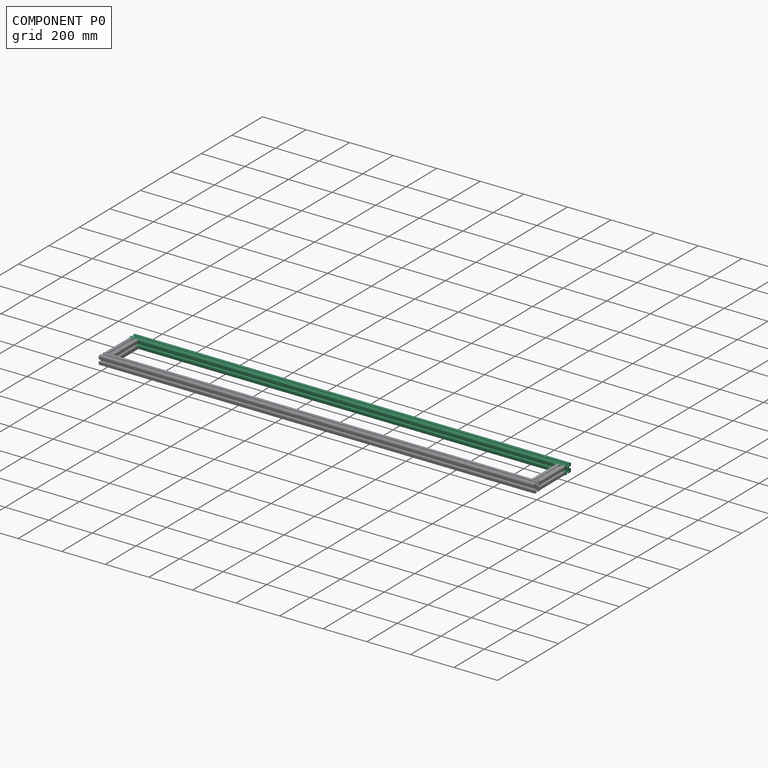
[diagram: component P0 — assembled]
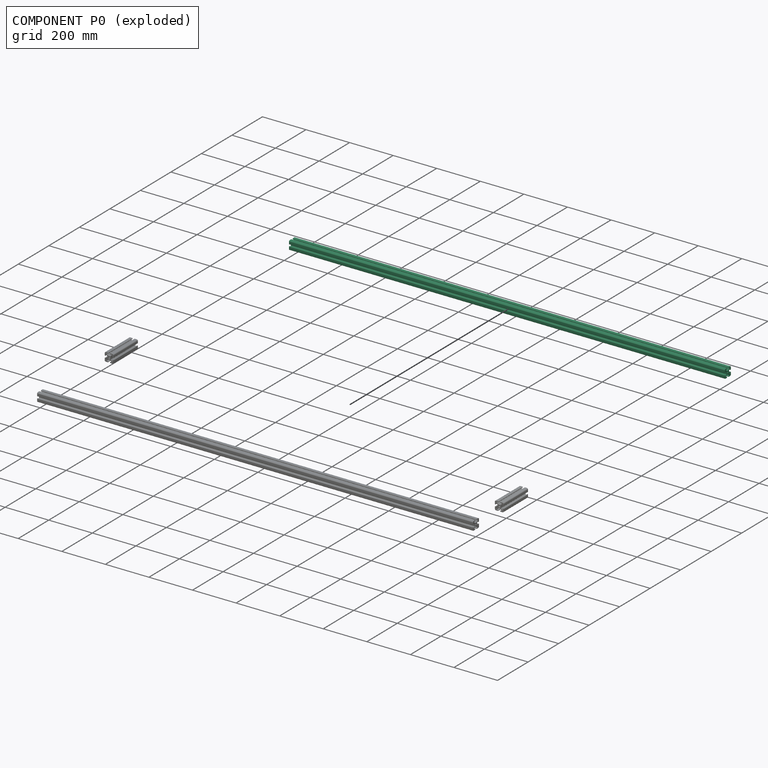
[diagram: component P0 — exploded]
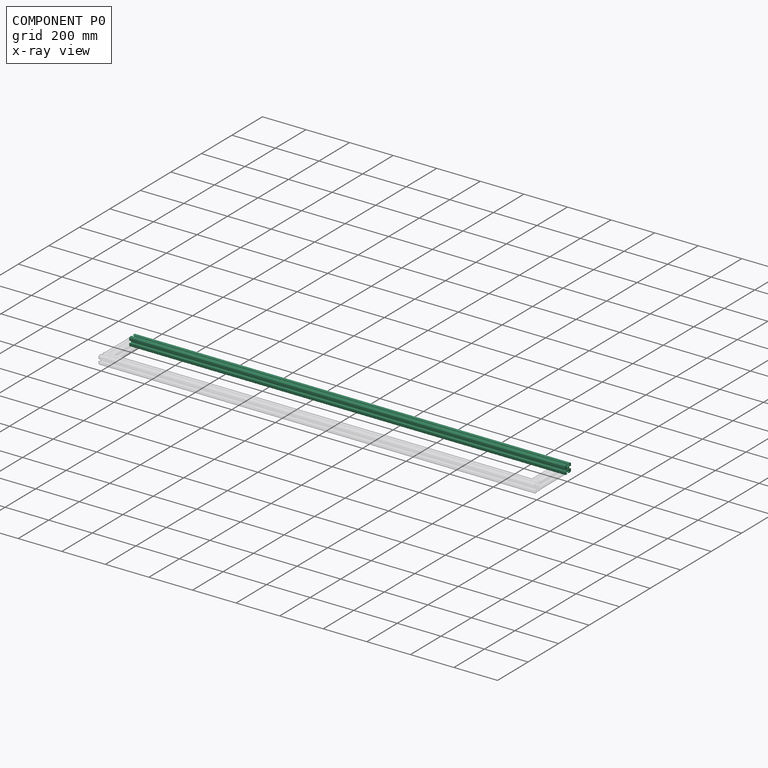
[diagram: component P0 — x-ray view]
COMPONENT P0 — recipe-attached (CADFS 00881980, mesh-verified: the recipe's output STEP matches this component's geometry to below the mesh-comparison resolution (tessellation chordal tolerance ~3 mm)).
Held by: FASTENED mate "Fastened 3" to P2; FASTENED mate "Fastened 1" to P3.
Construction recipe (FeatureScript — the CAD program that rebuilds this solid; sketch coordinates are in the units given by the * unit suffixes, e.g. mm):

FeatureScript 1511;
import(path : "onshape/std/geometry.fs", version : "1511.0");
import(path : "onshape/std/common.fs", version : "1511.0");
const mm = millimeter;
const VERTEX = EntityType.VERTEX;
const EDGE = EntityType.EDGE;
const FACE = EntityType.FACE;
const BODY = EntityType.BODY;
function v(x, y){return vector(x, y);}
function OD(order){return orderDisambiguation(order);}
function OSD(set){return originalSetDisambiguation(set);}
function TD(topology){return topologyDisambiguation(topology);}
function TDD(query){return trueDependencyDisambiguation(query);}
function sQuery(a, b, c) {return sketchEntityQuery(a, b, c);}

annotation { "Feature Type Name" : "Feature", "Feature Type Description" : "" }
export const myFeature = defineFeature(function(context is Context, id is Id, definition is map)
    precondition{}
    {
        {
            var Q0;
            Q0=qCreatedBy(makeId("Right.planeOp"),FACE);
            var sketch = newSketch(context, id + "F0", { "sketchPlane" : qUnion([Q0])});
            skLineSegment(sketch, "E0", {"start": v(-15.94, 15.35) * mm, "end": v(0, 15.35) * mm});
            skLineSegment(sketch, "E1", {"start": v(0, 15.35) * mm, "end": v(8.12, 15.35) * mm, "construction": true});
            skLineSegment(sketch, "E2", {"start": v(8.12, 15.35) * mm, "end": v(24.06, 15.35) * mm});
            skLineSegment(sketch, "E3.bottom", {"start": v(-3.62, 3.04) * mm, "end": v(11.75, 3.04) * mm});
            skLineSegment(sketch, "E3.top", {"start": v(-3.62, -12.33) * mm, "end": v(11.75, -12.33) * mm});
            skLineSegment(sketch, "E3.left", {"start": v(-3.62, 3.04) * mm, "end": v(-3.62, -12.33) * mm});
            skLineSegment(sketch, "E3.right", {"start": v(11.75, 3.04) * mm, "end": v(11.75, -12.33) * mm});
            skLineSegment(sketch, "E4", {"start": v(11.74, 3.04) * mm, "end": v(24.06, 15.35) * mm, "construction": true});
            skLineSegment(sketch, "E5", {"start": v(-3.62, 3.04) * mm, "end": v(-15.94, 15.35) * mm});
            skLineSegment(sketch, "E6", {"start": v(-3.62, -12.33) * mm, "end": v(-15.94, -24.65) * mm, "construction": true});
            skLineSegment(sketch, "E7", {"start": v(11.74, -12.33) * mm, "end": v(24.06, -24.65) * mm});
            skLineSegment(sketch, "E8", {"start": v(16.5, 7.78) * mm, "end": v(14.97, 9.31) * mm, "construction": true});
            skLineSegment(sketch, "E9", {"start": v(16.5, 7.78) * mm, "end": v(18.02, 6.26) * mm, "construction": true});
            skLineSegment(sketch, "E10", {"start": v(14.97, 9.31) * mm, "end": v(21, 15.35) * mm});
            skLineSegment(sketch, "E11", {"start": v(18.02, 6.26) * mm, "end": v(24.06, 12.3) * mm});
            skLineSegment(sketch, "E12", {"start": v(14.97, 9.31) * mm, "end": v(-15.94, -21.6) * mm});
            skLineSegment(sketch, "E13", {"start": v(18.02, 6.26) * mm, "end": v(-12.89, -24.65) * mm});
            skLineSegment(sketch, "E14", {"start": v(0, 15.35) * mm, "end": v(0, 11.03) * mm});
            skLineSegment(sketch, "E15", {"start": v(8.12, 15.35) * mm, "end": v(8.12, 11.03) * mm});
            skLineSegment(sketch, "E16", {"start": v(8.12, 11.03) * mm, "end": v(16.69, 11.03) * mm});
            skLineSegment(sketch, "E17", {"start": v(0, 11.03) * mm, "end": v(-11.62, 11.03) * mm});
            skLineSegment(sketch, "E18", {"start": v(-3.62, 3.04) * mm, "end": v(11.75, -12.33) * mm});
            skLineSegment(sketch, "E19", {"start": v(11.74, 3.04) * mm, "end": v(-3.62, -12.33) * mm, "construction": true});
            skCircle(sketch, "E20", {"center": v(4.06, -4.65) * mm, "radius": 3.4 * mm});
            skLineSegment(sketch, "E21", {"start": v(24.06, -0.59) * mm, "end": v(24.06, -8.7) * mm, "construction": true});
            skLineSegment(sketch, "E22", {"start": v(24.06, -0.59) * mm, "end": v(24.06, 15.35) * mm});
            skLineSegment(sketch, "E23", {"start": v(24.06, -24.65) * mm, "end": v(24.06, -8.7) * mm});
            skLineSegment(sketch, "E24", {"start": v(24.06, -0.59) * mm, "end": v(19.74, -0.59) * mm});
            skLineSegment(sketch, "E25", {"start": v(24.06, -8.7) * mm, "end": v(19.74, -8.7) * mm});
            skLineSegment(sketch, "E26", {"start": v(19.74, -0.59) * mm, "end": v(19.74, 7.98) * mm});
            skLineSegment(sketch, "E27", {"start": v(19.74, 7.98) * mm, "end": v(16.69, 11.03) * mm});
            skLineSegment(sketch, "E28", {"start": v(-7.27, 6.68) * mm, "end": v(-8.8, 5.15) * mm});
            skLineSegment(sketch, "E29", {"start": v(-7.27, 6.68) * mm, "end": v(-5.74, 8.2) * mm});
            skLineSegment(sketch, "E30", {"start": v(-5.74, 8.2) * mm, "end": v(-12.89, 15.35) * mm});
            skLineSegment(sketch, "E31", {"start": v(-5.74, 8.2) * mm, "end": v(24.06, -21.6) * mm});
            skLineSegment(sketch, "E32", {"start": v(19.74, -8.7) * mm, "end": v(19.74, -17.27) * mm});
            skLineSegment(sketch, "E33", {"start": v(-15.94, 15.35) * mm, "end": v(-15.94, -0.59) * mm});
            skLineSegment(sketch, "E34", {"start": v(-15.94, -0.59) * mm, "end": v(-15.94, -8.7) * mm, "construction": true});
            skLineSegment(sketch, "E35", {"start": v(-15.94, -24.65) * mm, "end": v(0, -24.65) * mm});
            skLineSegment(sketch, "E36", {"start": v(0, -24.65) * mm, "end": v(8.12, -24.65) * mm, "construction": true});
            skLineSegment(sketch, "E37", {"start": v(-15.94, -8.7) * mm, "end": v(-15.94, -24.65) * mm});
            skLineSegment(sketch, "E38", {"start": v(8.12, -24.65) * mm, "end": v(24.06, -24.65) * mm});
            skLineSegment(sketch, "E39", {"start": v(-8.8, 5.15) * mm, "end": v(-15.94, 12.3) * mm});
            skLineSegment(sketch, "E40", {"start": v(-8.8, 5.15) * mm, "end": v(21, -24.65) * mm});
            skLineSegment(sketch, "E41", {"start": v(-15.94, -0.59) * mm, "end": v(-11.62, -0.59) * mm});
            skLineSegment(sketch, "E42", {"start": v(-15.94, -8.7) * mm, "end": v(-11.62, -8.7) * mm});
            skLineSegment(sketch, "E43", {"start": v(0, -24.65) * mm, "end": v(0, -20.33) * mm});
            skLineSegment(sketch, "E44", {"start": v(8.12, -24.65) * mm, "end": v(8.12, -20.33) * mm});
            skLineSegment(sketch, "E45", {"start": v(-11.62, -0.59) * mm, "end": v(-11.62, 7.98) * mm});
            skLineSegment(sketch, "E46", {"start": v(-11.62, -8.7) * mm, "end": v(-11.62, -17.27) * mm});
            skLineSegment(sketch, "E47", {"start": v(0, -20.33) * mm, "end": v(-8.57, -20.33) * mm});
            skLineSegment(sketch, "E48", {"start": v(8.12, -20.33) * mm, "end": v(16.69, -20.33) * mm});
            skSolve(sketch);
        }
        {
            var Q0;
            {var subQ0=sQuery(id+"F0.wireOp",EDGE,"E41");Q0=makeQuery(id+"F0.imprint","IMPRINT",FACE,{"disambiguationData":[TD([[makeQuery(id+"F0.imprint","IMPRINT",EDGE,{"derivedFrom":subQ0}),1.0]])]});}
            var Q1;
            {var subQ0=sQuery(id+"F0.wireOp",EDGE,"E28");Q1=makeQuery(id+"F0.imprint","IMPRINT",FACE,{"disambiguationData":[TD([[makeQuery(id+"F0.imprint","IMPRINT",EDGE,{"derivedFrom":subQ0}),-1.0]])]});}
            var Q2;
            {var subQ3=sQuery(id+"F0.wireOp",EDGE,"E29");Q2=makeQuery(id+"F0.imprint","IMPRINT",FACE,{"disambiguationData":[TD([[makeQuery(id+"F0.imprint","IMPRINT",EDGE,{"derivedFrom":subQ3}),1.0]])]});}
            var Q3;
            {var subQ0=sQuery(id+"F0.wireOp",EDGE,"E14");Q3=makeQuery(id+"F0.imprint","IMPRINT",FACE,{"disambiguationData":[TD([[makeQuery(id+"F0.imprint","IMPRINT",EDGE,{"derivedFrom":subQ0}),-1.0]])]});}
            var Q4;
            {var subQ0=sQuery(id+"F0.wireOp",EDGE,"E5");var subQ5=sQuery(id+"F0.wireOp",EDGE,"E17");var subQ6=makeQuery(id+"F0.imprint","INTERSECT",VERTEX,{"derivedFrom":[subQ0,subQ5]});Q4=makeQuery(id+"F0.imprint","IMPRINT",FACE,{"disambiguationData":[TD([[makeQuery(id+"F0.imprint","IMPRINT",EDGE,{"disambiguationData":[TD([[subQ6,1.0]])],"derivedFrom":subQ5}),-1.0]])]});}
            var Q5;
            {var subQ4=sQuery(id+"F0.wireOp",EDGE,"E42");Q5=makeQuery(id+"F0.imprint","IMPRINT",FACE,{"disambiguationData":[TD([[makeQuery(id+"F0.imprint","IMPRINT",EDGE,{"derivedFrom":subQ4}),-1.0]])]});}
            var Q6;
            {var subQ2=sQuery(id+"F0.wireOp",EDGE,"E3.left");var subQ6=sQuery(id+"F0.wireOp",EDGE,"E3.top");var subQ7=makeQuery(id+"F0.imprint","INTERSECT",VERTEX,{"derivedFrom":[subQ6,subQ2]});Q6=makeQuery(id+"F0.imprint","IMPRINT",FACE,{"disambiguationData":[TD([[makeQuery(id+"F0.imprint","IMPRINT",EDGE,{"disambiguationData":[TD([[subQ7,-1.0]])],"derivedFrom":subQ6}),-1.0]])]});}
            var Q7;
            {var subQ4=sQuery(id+"F0.wireOp",EDGE,"E43");Q7=makeQuery(id+"F0.imprint","IMPRINT",FACE,{"disambiguationData":[TD([[makeQuery(id+"F0.imprint","IMPRINT",EDGE,{"derivedFrom":subQ4}),1.0]])]});}
            var Q8;
            {var subQ3=sQuery(id+"F0.wireOp",EDGE,"E27");Q8=makeQuery(id+"F0.imprint","IMPRINT",FACE,{"disambiguationData":[TD([[makeQuery(id+"F0.imprint","IMPRINT",EDGE,{"derivedFrom":subQ3}),1.0]])]});}
            var Q9;
            {var subQ3=sQuery(id+"F0.wireOp",EDGE,"E27");Q9=makeQuery(id+"F0.imprint","IMPRINT",FACE,{"disambiguationData":[TD([[makeQuery(id+"F0.imprint","IMPRINT",EDGE,{"derivedFrom":subQ3}),-1.0]])]});}
            var Q10;
            {var subQ4=sQuery(id+"F0.wireOp",EDGE,"E24");Q10=makeQuery(id+"F0.imprint","IMPRINT",FACE,{"disambiguationData":[TD([[makeQuery(id+"F0.imprint","IMPRINT",EDGE,{"derivedFrom":subQ4}),-1.0]])]});}
            var Q11;
            {var subQ0=sQuery(id+"F0.wireOp",EDGE,"E15");Q11=makeQuery(id+"F0.imprint","IMPRINT",FACE,{"disambiguationData":[TD([[makeQuery(id+"F0.imprint","IMPRINT",EDGE,{"derivedFrom":subQ0}),1.0]])]});}
            var Q12;
            {var subQ0=sQuery(id+"F0.wireOp",EDGE,"E13");var subQ1=sQuery(id+"F0.wireOp",EDGE,"E3.right");var subQ2=makeQuery(id+"F0.imprint","INTERSECT",VERTEX,{"derivedFrom":[subQ1,subQ0]});Q12=makeQuery(id+"F0.imprint","IMPRINT",FACE,{"disambiguationData":[TD([[makeQuery(id+"F0.imprint","IMPRINT",EDGE,{"disambiguationData":[TD([[subQ2,-1.0]])],"derivedFrom":subQ1}),-1.0]])]});}
            var Q13;
            {var subQ0=sQuery(id+"F0.wireOp",EDGE,"E13");var subQ1=sQuery(id+"F0.wireOp",EDGE,"E3.top");var subQ2=makeQuery(id+"F0.imprint","INTERSECT",VERTEX,{"derivedFrom":[subQ1,subQ0]});Q13=makeQuery(id+"F0.imprint","IMPRINT",FACE,{"disambiguationData":[TD([[makeQuery(id+"F0.imprint","IMPRINT",EDGE,{"disambiguationData":[TD([[subQ2,-1.0]])],"derivedFrom":subQ1}),1.0]])]});}
            var Q14;
            {var subQ0=sQuery(id+"F0.wireOp",EDGE,"E40");var subQ1=sQuery(id+"F0.wireOp",EDGE,"E3.left");var subQ2=makeQuery(id+"F0.imprint","INTERSECT",VERTEX,{"derivedFrom":[subQ1,subQ0]});Q14=makeQuery(id+"F0.imprint","IMPRINT",FACE,{"disambiguationData":[TD([[makeQuery(id+"F0.imprint","IMPRINT",EDGE,{"disambiguationData":[TD([[subQ2,-1.0]])],"derivedFrom":subQ1}),1.0]])]});}
            var Q15;
            {var subQ0=sQuery(id+"F0.wireOp",EDGE,"E31");var subQ1=sQuery(id+"F0.wireOp",EDGE,"E3.bottom");var subQ2=makeQuery(id+"F0.imprint","INTERSECT",VERTEX,{"derivedFrom":[subQ1,subQ0]});Q15=makeQuery(id+"F0.imprint","IMPRINT",FACE,{"disambiguationData":[TD([[makeQuery(id+"F0.imprint","IMPRINT",EDGE,{"disambiguationData":[TD([[subQ2,-1.0]])],"derivedFrom":subQ1}),-1.0]])]});}
            var Q16;
            {var subQ5=sQuery(id+"F0.wireOp",EDGE,"E29");Q16=makeQuery(id+"F0.imprint","IMPRINT",FACE,{"disambiguationData":[TD([[makeQuery(id+"F0.imprint","IMPRINT",EDGE,{"derivedFrom":subQ5}),-1.0]])]});}
            var Q17;
            {var subQ5=sQuery(id+"F0.wireOp",EDGE,"E28");Q17=makeQuery(id+"F0.imprint","IMPRINT",FACE,{"disambiguationData":[TD([[makeQuery(id+"F0.imprint","IMPRINT",EDGE,{"derivedFrom":subQ5}),1.0]])]});}
            var Q18;
            {var subQ1=sQuery(id+"F0.wireOp",EDGE,"E7");Q18=makeQuery(id+"F0.imprint","IMPRINT",FACE,{"disambiguationData":[TD([[makeQuery(id+"F0.imprint","IMPRINT",EDGE,{"derivedFrom":subQ1}),-1.0]])]});}
            var Q19;
            {var subQ1=sQuery(id+"F0.wireOp",EDGE,"E7");Q19=makeQuery(id+"F0.imprint","IMPRINT",FACE,{"disambiguationData":[TD([[makeQuery(id+"F0.imprint","IMPRINT",EDGE,{"derivedFrom":subQ1}),1.0]])]});}
            var Q20;
            {var subQ0=sQuery(id+"F0.wireOp",EDGE,"E25");Q20=makeQuery(id+"F0.imprint","IMPRINT",FACE,{"disambiguationData":[TD([[makeQuery(id+"F0.imprint","IMPRINT",EDGE,{"derivedFrom":subQ0}),1.0]])]});}
            var Q21;
            {var subQ0=sQuery(id+"F0.wireOp",EDGE,"E44");Q21=makeQuery(id+"F0.imprint","IMPRINT",FACE,{"disambiguationData":[TD([[makeQuery(id+"F0.imprint","IMPRINT",EDGE,{"derivedFrom":subQ0}),-1.0]])]});}
            var Q22;
            {var subQ1=sQuery(id+"F0.wireOp",EDGE,"E3.right");var subQ6=sQuery(id+"F0.wireOp",EDGE,"E3.bottom");var subQ9=makeQuery(id+"F0.imprint","INTERSECT",VERTEX,{"derivedFrom":[subQ6,subQ1]});Q22=makeQuery(id+"F0.imprint","IMPRINT",FACE,{"disambiguationData":[TD([[makeQuery(id+"F0.imprint","IMPRINT",EDGE,{"disambiguationData":[TD([[subQ9,1.0]])],"derivedFrom":subQ6}),-1.0]])]});}
            var Q23;
            {var subQ0=sQuery(id+"F0.wireOp",EDGE,"E18");var subQ5=sQuery(id+"F0.wireOp",EDGE,"E20");var subQ6=makeQuery(id+"F0.imprint","INTERSECT",VERTEX,{"disambiguationData":[OD(0.0)],"derivedFrom":[subQ0,subQ5]});Q23=makeQuery(id+"F0.imprint","IMPRINT",FACE,{"disambiguationData":[TD([[makeQuery(id+"F0.imprint","IMPRINT",EDGE,{"disambiguationData":[TD([[subQ6,-1.0]])],"derivedFrom":subQ5}),-1.0]])]});}
            var Q24;
            {var subQ1=sQuery(id+"F0.wireOp",EDGE,"E3.top");var subQ6=sQuery(id+"F0.wireOp",EDGE,"E3.left");var subQ9=makeQuery(id+"F0.imprint","INTERSECT",VERTEX,{"derivedFrom":[subQ1,subQ6]});Q24=makeQuery(id+"F0.imprint","IMPRINT",FACE,{"disambiguationData":[TD([[makeQuery(id+"F0.imprint","IMPRINT",EDGE,{"disambiguationData":[TD([[subQ9,-1.0]])],"derivedFrom":subQ1}),1.0]])]});}
            var Q25;
            {var subQ0=sQuery(id+"F0.wireOp",EDGE,"E18");var subQ5=sQuery(id+"F0.wireOp",EDGE,"E20");var subQ6=makeQuery(id+"F0.imprint","INTERSECT",VERTEX,{"disambiguationData":[OD(1.0)],"derivedFrom":[subQ0,subQ5]});Q25=makeQuery(id+"F0.imprint","IMPRINT",FACE,{"disambiguationData":[TD([[makeQuery(id+"F0.imprint","IMPRINT",EDGE,{"disambiguationData":[TD([[subQ6,1.0]])],"derivedFrom":subQ5}),-1.0]])]});}
            var Q26;
            {var subQ0=sQuery(id+"F0.wireOp",EDGE,"E18");var subQ5=sQuery(id+"F0.wireOp",EDGE,"E20");var subQ6=makeQuery(id+"F0.imprint","INTERSECT",VERTEX,{"disambiguationData":[OD(1.0)],"derivedFrom":[subQ0,subQ5]});Q26=makeQuery(id+"F0.imprint","IMPRINT",FACE,{"disambiguationData":[TD([[makeQuery(id+"F0.imprint","IMPRINT",EDGE,{"disambiguationData":[TD([[subQ6,-1.0]])],"derivedFrom":subQ5}),-1.0]])]});}
            var Q27;
            {var subQ0=sQuery(id+"F0.wireOp",EDGE,"E18");var subQ5=sQuery(id+"F0.wireOp",EDGE,"E20");var subQ6=makeQuery(id+"F0.imprint","INTERSECT",VERTEX,{"disambiguationData":[OD(0.0)],"derivedFrom":[subQ0,subQ5]});Q27=makeQuery(id+"F0.imprint","IMPRINT",FACE,{"disambiguationData":[TD([[makeQuery(id+"F0.imprint","IMPRINT",EDGE,{"disambiguationData":[TD([[subQ6,1.0]])],"derivedFrom":subQ5}),-1.0]])]});}
            extrude(context, id + "F1", {"entities" : qUnion([Q0, Q1, Q2, Q3, Q4, Q5, Q6, Q7, Q8, Q9, Q10, Q11, Q12, Q13, Q14, Q15, Q16, Q17, Q18, Q19, Q20, Q21, Q22, Q23, Q24, Q25, Q26, Q27]), "depth" : 2000 * mm});
        }
        {
            var Q0;
            Q0=makeQuery(id+"F1.opExtrude","SWEPT_EDGE",EDGE,{"disambiguationData":[OSD([sQuery(id+"F0.wireOp",EDGE,"E14"),sQuery(id+"F0.wireOp",EDGE,"E17")])]});
            var Q1;
            Q1=makeQuery(id+"F1.opExtrude","SWEPT_EDGE",EDGE,{"disambiguationData":[OSD([sQuery(id+"F0.wireOp",EDGE,"E41"),sQuery(id+"F0.wireOp",EDGE,"E45")])]});
            var Q2;
            Q2=makeQuery(id+"F1.opExtrude","SWEPT_EDGE",EDGE,{"disambiguationData":[OSD([sQuery(id+"F0.wireOp",EDGE,"E33"),sQuery(id+"F0.wireOp",EDGE,"E41")])]});
            var Q3;
            Q3=makeQuery(id+"F1.opExtrude","SWEPT_EDGE",EDGE,{"disambiguationData":[OSD([sQuery(id+"F0.wireOp",EDGE,"E0"),sQuery(id+"F0.wireOp",EDGE,"E14")])]});
            var Q4;
            Q4=makeQuery(id+"F1.opExtrude","SWEPT_EDGE",EDGE,{"disambiguationData":[OSD([sQuery(id+"F0.wireOp",EDGE,"E15"),sQuery(id+"F0.wireOp",EDGE,"E16")])]});
            var Q5;
            Q5=makeQuery(id+"F1.opExtrude","SWEPT_EDGE",EDGE,{"disambiguationData":[OSD([sQuery(id+"F0.wireOp",EDGE,"E24"),sQuery(id+"F0.wireOp",EDGE,"E26")])]});
            var Q6;
            Q6=makeQuery(id+"F1.opExtrude","SWEPT_EDGE",EDGE,{"disambiguationData":[OSD([sQuery(id+"F0.wireOp",EDGE,"E22"),sQuery(id+"F0.wireOp",EDGE,"E24")])]});
            var Q7;
            Q7=makeQuery(id+"F1.opExtrude","SWEPT_EDGE",EDGE,{"disambiguationData":[OSD([sQuery(id+"F0.wireOp",EDGE,"E38"),sQuery(id+"F0.wireOp",EDGE,"E44")])]});
            var Q8;
            Q8=makeQuery(id+"F1.opExtrude","SWEPT_EDGE",EDGE,{"disambiguationData":[OSD([sQuery(id+"F0.wireOp",EDGE,"E2"),sQuery(id+"F0.wireOp",EDGE,"E15")])]});
            var Q9;
            Q9=makeQuery(id+"F1.opExtrude","SWEPT_EDGE",EDGE,{"disambiguationData":[OSD([sQuery(id+"F0.wireOp",EDGE,"E37"),sQuery(id+"F0.wireOp",EDGE,"E42")])]});
            var Q10;
            Q10=makeQuery(id+"F1.opExtrude","SWEPT_EDGE",EDGE,{"disambiguationData":[OSD([sQuery(id+"F0.wireOp",EDGE,"E42"),sQuery(id+"F0.wireOp",EDGE,"E46")])]});
            var Q11;
            Q11=makeQuery(id+"F1.opExtrude","SWEPT_EDGE",EDGE,{"disambiguationData":[OSD([sQuery(id+"F0.wireOp",EDGE,"E35"),sQuery(id+"F0.wireOp",EDGE,"E43")])]});
            var Q12;
            Q12=makeQuery(id+"F1.opExtrude","SWEPT_EDGE",EDGE,{"disambiguationData":[OSD([sQuery(id+"F0.wireOp",EDGE,"E43"),sQuery(id+"F0.wireOp",EDGE,"E47")])]});
            var Q13;
            Q13=makeQuery(id+"F1.opExtrude","SWEPT_EDGE",EDGE,{"disambiguationData":[OSD([sQuery(id+"F0.wireOp",EDGE,"E44"),sQuery(id+"F0.wireOp",EDGE,"E48")])]});
            var Q14;
            Q14=makeQuery(id+"F1.opExtrude","SWEPT_EDGE",EDGE,{"disambiguationData":[OSD([sQuery(id+"F0.wireOp",EDGE,"E25"),sQuery(id+"F0.wireOp",EDGE,"E32")])]});
            var Q15;
            Q15=makeQuery(id+"F1.opExtrude","SWEPT_EDGE",EDGE,{"disambiguationData":[OSD([sQuery(id+"F0.wireOp",EDGE,"E23"),sQuery(id+"F0.wireOp",EDGE,"E25")])]});
            fillet(context, id + "F2", {"entities" : qUnion([Q0, Q1, Q2, Q3, Q4, Q5, Q6, Q7, Q8, Q9, Q10, Q11, Q12, Q13, Q14, Q15]), "radius" : 2 * mm, "tangentPropagation" : true, "allowEdgeOverflow" : false});
        }
        {
            var Q0;
            Q0=makeQuery(id+"F1.opExtrude","SWEPT_EDGE",EDGE,{"disambiguationData":[OSD([sQuery(id+"F0.wireOp",EDGE,"E0"),sQuery(id+"F0.wireOp",EDGE,"E5"),sQuery(id+"F0.wireOp",EDGE,"E33")])]});
            var Q1;
            Q1=makeQuery(id+"F1.opExtrude","SWEPT_EDGE",EDGE,{"disambiguationData":[OSD([sQuery(id+"F0.wireOp",EDGE,"E2"),sQuery(id+"F0.wireOp",EDGE,"E22")])]});
            var Q2;
            Q2=makeQuery(id+"F1.opExtrude","SWEPT_EDGE",EDGE,{"disambiguationData":[OSD([sQuery(id+"F0.wireOp",EDGE,"E7"),sQuery(id+"F0.wireOp",EDGE,"E23"),sQuery(id+"F0.wireOp",EDGE,"E38")])]});
            var Q3;
            Q3=makeQuery(id+"F1.opExtrude","SWEPT_EDGE",EDGE,{"disambiguationData":[OSD([sQuery(id+"F0.wireOp",EDGE,"E35"),sQuery(id+"F0.wireOp",EDGE,"E37")])]});
            fillet(context, id + "F3", {"entities" : qUnion([Q0, Q1, Q2, Q3]), "radius" : 5 * mm, "tangentPropagation" : true, "allowEdgeOverflow" : false});
        }
    });
PROVENANCE & LICENSES
Assembly (occurrences, transforms, mates, per-part STEP geometry): AutoMate dataset, Zenodo record 7776208, CC0.
Construction recipes: CADFS (HuggingFace VladPyatov/CADFS, CC-BY-4.0, layered over the ABC dataset), FeatureScript reconstruction programs keyed by ABC model id.
Join: ABC meta listings map ABC model id -> Onshape documentId; within a shared document, parts are matched by geometric signature (bounding-box dims + volume at 0.1% relative tolerance, exact B-rep face/solid counts).
Verification: 4 of this assembly's 4 components carry a recipe attachment, and every attachment is mesh-verified: the CADFS STEP and the AutoMate member STEP were compared as meshes in their shared local frame (symmetric sampled-point-to-mesh distance); worst across the 4 attachments: below the mesh-comparison resolution (tessellation chordal tolerance ~3 mm) on a 2001 mm part.
Renders: orthographic iso camera (az 35 / el 25); the floor grid conveys scale (grid pitch printed in each image; no ruler). In the exploded view each component is displaced by its stored offset vector: the offsets alone carry the explosion direction (mate normal/axis signs are not orientation cues and do not encode it), and separation distances are assigned per mate-chain, not proportionally to assembly-order depth.
